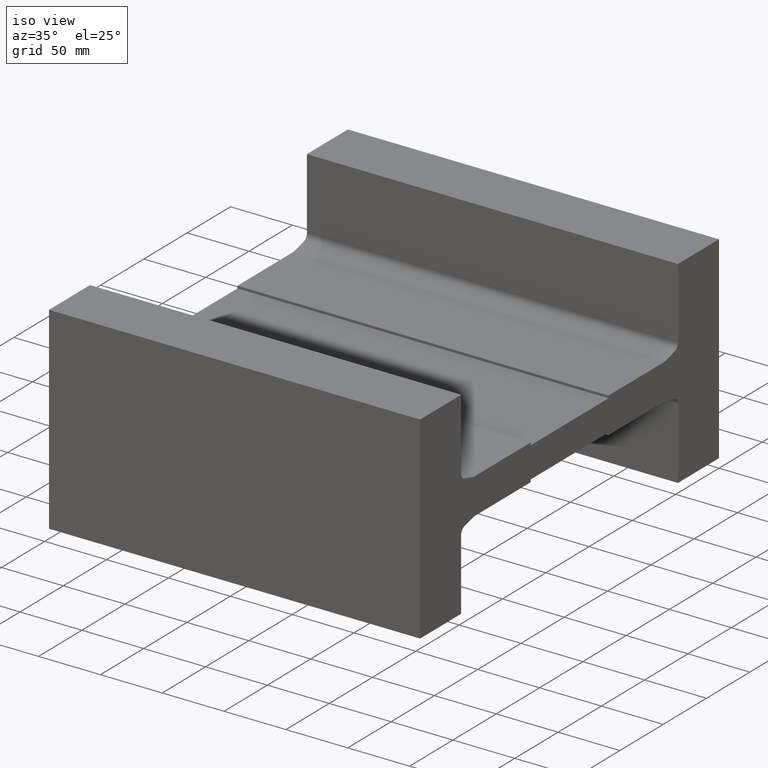
[diagram: clean part render]
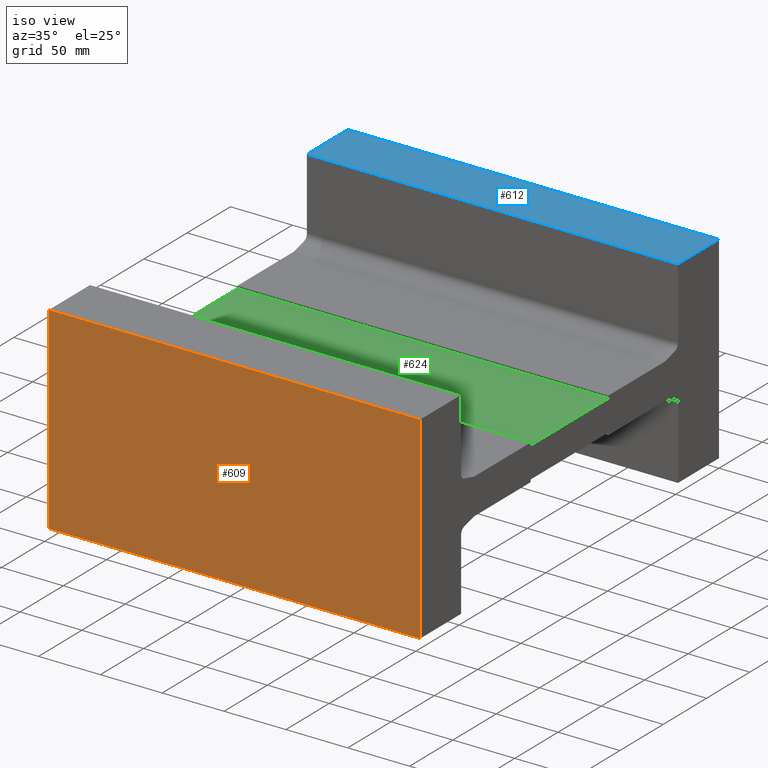
[diagram: same view with three faces highlighted in distinct colors, each labeled with its STEP entity id]
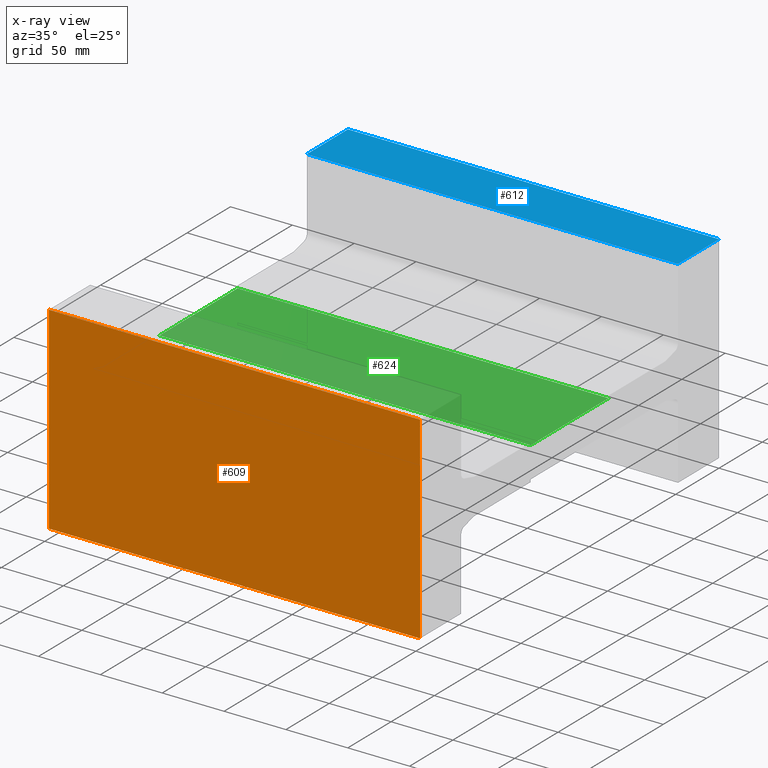
[diagram: x-ray of the same camera — body ghosted, the three highlighted faces saturated]
A machine part, iso view with three faces highlighted in distinct colors.
The next image is the same camera in x-ray (body ghosted, the three faces saturated) — at least one of them is partly hidden behind the body in this view.
Their STEP definitions:

[orange] entity #609 — the highlighted planar face has unit normal (-0, -1, -0).
#18=PLANE('',#663);
#46=FACE_OUTER_BOUND('',#76,.T.);
#76=EDGE_LOOP('',(#424,#425,#426,#427));
#109=LINE('',#875,#185);
#114=LINE('',#886,#190);
#116=LINE('',#889,#192);
#117=LINE('',#890,#193);
#185=VECTOR('',#718,10.);
#190=VECTOR('',#727,10.);
#192=VECTOR('',#731,10.);
#193=VECTOR('',#732,10.);
#270=VERTEX_POINT('',#871);
#271=VERTEX_POINT('',#873);
#274=VERTEX_POINT('',#883);
#275=VERTEX_POINT('',#885);
#329=EDGE_CURVE('',#271,#270,#109,.T.);
#334=EDGE_CURVE('',#275,#274,#114,.T.);
#336=EDGE_CURVE('',#274,#270,#116,.T.);
#337=EDGE_CURVE('',#275,#271,#117,.T.);
#424=ORIENTED_EDGE('',*,*,#336,.T.);
#425=ORIENTED_EDGE('',*,*,#329,.F.);
#426=ORIENTED_EDGE('',*,*,#337,.F.);
#427=ORIENTED_EDGE('',*,*,#334,.T.);
#609=ADVANCED_FACE('',(#46),#18,.T.);
#663=AXIS2_PLACEMENT_3D('',#888,#729,#730);
#718=DIRECTION('',(1.,-1.69176980447317E-15,4.39325214218709E-16));
#727=DIRECTION('',(1.,-1.69176980447317E-15,4.39325214218709E-16));
#729=DIRECTION('center_axis',(-1.69176980447317E-15,-1.,-2.65507170426118E-16));
#730=DIRECTION('ref_axis',(4.39325214218709E-16,2.65507170426118E-16,-1.));
#731=DIRECTION('',(-4.39325214218709E-16,-2.65507170426118E-16,1.));
#732=DIRECTION('',(-4.39325214218709E-16,-2.65507170426118E-16,1.));
#871=CARTESIAN_POINT('',(300.,-345.000000000002,79.9999999999991));
#873=CARTESIAN_POINT('',(-4.03131413019893E-13,-345.000000000001,79.999999999999));
#875=CARTESIAN_POINT('',(-4.03131413019893E-13,-345.000000000001,79.999999999999));
#883=CARTESIAN_POINT('',(300.,-345.000000000002,-80.000000000001));
#885=CARTESIAN_POINT('',(-3.32839378744899E-13,-345.000000000001,-80.0000000000011));
#886=CARTESIAN_POINT('',(-3.32839378744899E-13,-345.000000000001,-80.0000000000011));
#888=CARTESIAN_POINT('Origin',(-3.67985395882396E-13,-345.000000000001,
-1.04431010680347E-12));
#889=CARTESIAN_POINT('',(300.,-345.000000000002,-9.12512542537861E-13));
#890=CARTESIAN_POINT('',(-3.67985395882396E-13,-345.000000000001,-1.04431010680347E-12));

[blue] entity #612 — the highlighted planar face has unit normal (-0, -0, 1).
#21=PLANE('',#666);
#49=FACE_OUTER_BOUND('',#79,.T.);
#79=EDGE_LOOP('',(#436,#437,#438,#439));
#124=LINE('',#905,#200);
#125=LINE('',#908,#201);
#126=LINE('',#910,#202);
#127=LINE('',#911,#203);
#200=VECTOR('',#743,10.);
#201=VECTOR('',#746,10.);
#202=VECTOR('',#747,10.);
#203=VECTOR('',#748,10.);
#280=VERTEX_POINT('',#901);
#281=VERTEX_POINT('',#903);
#282=VERTEX_POINT('',#907);
#283=VERTEX_POINT('',#909);
#344=EDGE_CURVE('',#281,#280,#124,.T.);
#345=EDGE_CURVE('',#282,#280,#125,.T.);
#346=EDGE_CURVE('',#283,#281,#126,.T.);
#347=EDGE_CURVE('',#283,#282,#127,.T.);
#436=ORIENTED_EDGE('',*,*,#345,.T.);
#437=ORIENTED_EDGE('',*,*,#344,.F.);
#438=ORIENTED_EDGE('',*,*,#346,.F.);
#439=ORIENTED_EDGE('',*,*,#347,.T.);
#612=ADVANCED_FACE('',(#49),#21,.T.);
#666=AXIS2_PLACEMENT_3D('',#906,#744,#745);
#743=DIRECTION('',(1.,-1.69176980447317E-15,4.39325214218709E-16));
#744=DIRECTION('center_axis',(-4.39325214218709E-16,-1.28431008400517E-16,
1.));
#745=DIRECTION('ref_axis',(1.,-1.69176980447317E-15,4.39325214218709E-16));
#746=DIRECTION('',(1.69176980447317E-15,1.,1.28431008400518E-16));
#747=DIRECTION('',(1.69176980447317E-15,1.,1.28431008400518E-16));
#748=DIRECTION('',(1.,-1.69176980447317E-15,4.39325214218709E-16));
#901=CARTESIAN_POINT('',(300.,-1.59559686792409E-12,79.9999999999989));
#903=CARTESIAN_POINT('',(1.80529169523353E-13,-1.08806592658213E-12,79.9999999999988));
#905=CARTESIAN_POINT('',(1.80529169523353E-13,-1.08806592658213E-12,79.9999999999988));
#906=CARTESIAN_POINT('Origin',(1.00508457771771E-13,-47.3000000000011,79.9999999999988));
#907=CARTESIAN_POINT('',(300.,-47.3000000000016,79.9999999999989));
#908=CARTESIAN_POINT('',(300.,-47.3000000000016,79.9999999999989));
#909=CARTESIAN_POINT('',(1.00508457771771E-13,-47.3000000000011,79.9999999999988));
#910=CARTESIAN_POINT('',(1.00508457771771E-13,-47.3000000000011,79.9999999999988));
#911=CARTESIAN_POINT('',(1.00508457771771E-13,-47.3000000000011,79.9999999999988));

[green] entity #624 — the highlighted planar face has unit normal (0, -0, 1).
#31=PLANE('',#682);
#61=FACE_OUTER_BOUND('',#91,.T.);
#91=EDGE_LOOP('',(#508,#509,#510,#511));
#142=LINE('',#950,#218);
#161=LINE('',#986,#237);
#162=LINE('',#989,#238);
#163=LINE('',#990,#239);
#218=VECTOR('',#783,10.);
#237=VECTOR('',#812,10.);
#238=VECTOR('',#815,10.);
#239=VECTOR('',#816,10.);
#296=VERTEX_POINT('',#947);
#297=VERTEX_POINT('',#949);
#309=VERTEX_POINT('',#984);
#310=VERTEX_POINT('',#988);
#366=EDGE_CURVE('',#296,#297,#142,.T.);
#385=EDGE_CURVE('',#296,#309,#161,.T.);
#386=EDGE_CURVE('',#309,#310,#162,.T.);
#387=EDGE_CURVE('',#297,#310,#163,.T.);
#508=ORIENTED_EDGE('',*,*,#386,.T.);
#509=ORIENTED_EDGE('',*,*,#387,.F.);
#510=ORIENTED_EDGE('',*,*,#366,.F.);
#511=ORIENTED_EDGE('',*,*,#385,.T.);
#624=ADVANCED_FACE('',(#61),#31,.T.);
#682=AXIS2_PLACEMENT_3D('',#987,#813,#814);
#783=DIRECTION('',(0.,1.,9.12850042469573E-16));
#812=DIRECTION('',(1.,0.,0.));
#813=DIRECTION('center_axis',(0.,-9.12850042469573E-16,1.));
#814=DIRECTION('ref_axis',(1.,0.,0.));
#815=DIRECTION('',(0.,1.,9.12850042469573E-16));
#816=DIRECTION('',(1.,0.,0.));
#947=CARTESIAN_POINT('',(0.,-217.5,12.4999999999997));
#949=CARTESIAN_POINT('',(0.,-127.5,12.4999999999998));
#950=CARTESIAN_POINT('',(0.,-217.5,12.4999999999997));
#984=CARTESIAN_POINT('',(300.,-217.5,12.4999999999997));
#986=CARTESIAN_POINT('',(0.,-217.5,12.4999999999997));
#987=CARTESIAN_POINT('Origin',(0.,-217.5,12.4999999999997));
#988=CARTESIAN_POINT('',(300.,-127.5,12.4999999999998));
#989=CARTESIAN_POINT('',(300.,-217.5,12.4999999999997));
#990=CARTESIAN_POINT('',(0.,-127.5,12.4999999999998));